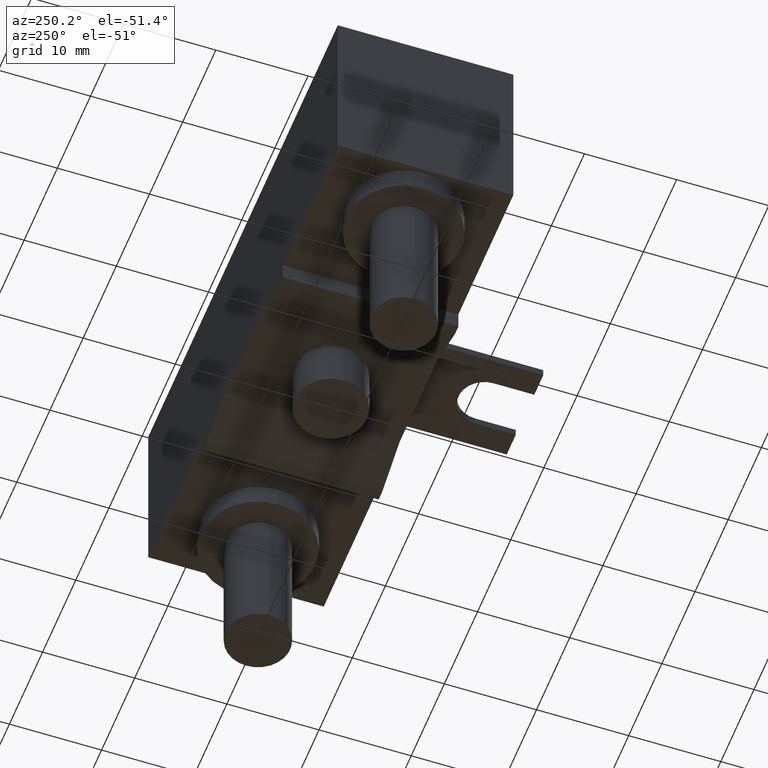
[diagram: clean part render]
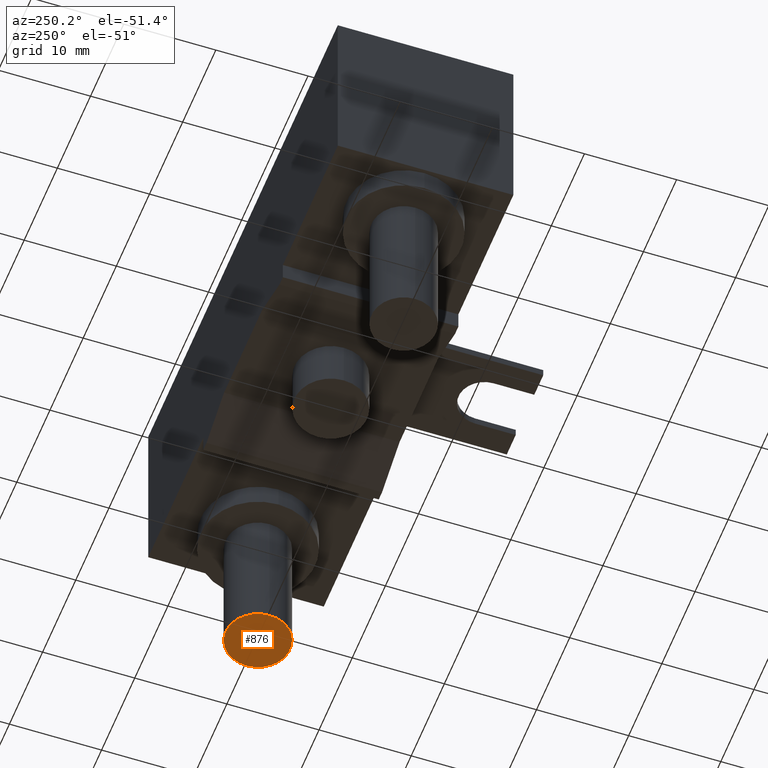
[diagram: same view with one face highlighted and labeled with its STEP entity id]
A machine part, auxiliary view. The second image highlights one B-rep face of the part: STEP entity #876.
In plain terms, the highlighted planar face has unit normal (0, 0, -1).
Its self-contained STEP definition (entity closure, byte-faithful):
#255=CARTESIAN_POINT('',(2.197E1,9.525E0,-2.723E1));
#256=DIRECTION('',(0.E0,0.E0,-1.E0));
#257=DIRECTION('',(1.E0,0.E0,0.E0));
#258=AXIS2_PLACEMENT_3D('',#255,#256,#257);
#260=CARTESIAN_POINT('',(2.197E1,9.525E0,-2.723E1));
#261=DIRECTION('',(0.E0,0.E0,-1.E0));
#262=DIRECTION('',(-1.E0,0.E0,0.E0));
#263=AXIS2_PLACEMENT_3D('',#260,#261,#262);
#447=CARTESIAN_POINT('',(2.547E1,9.525E0,-2.723E1));
#448=CARTESIAN_POINT('',(1.847E1,9.525E0,-2.723E1));
#449=VERTEX_POINT('',#447);
#450=VERTEX_POINT('',#448);
#867=CARTESIAN_POINT('',(0.E0,0.E0,-2.723E1));
#868=DIRECTION('',(0.E0,0.E0,-1.E0));
#869=DIRECTION('',(1.E0,0.E0,0.E0));
#870=AXIS2_PLACEMENT_3D('',#867,#868,#869);
#871=PLANE('',#870);
#872=ORIENTED_EDGE('',*,*,#847,.F.);
#873=ORIENTED_EDGE('',*,*,#861,.F.);
#874=EDGE_LOOP('',(#872,#873));
#875=FACE_OUTER_BOUND('',#874,.F.);
#259=CIRCLE('',#258,3.5E0);
#264=CIRCLE('',#263,3.5E0);
#847=EDGE_CURVE('',#449,#450,#259,.T.);
#861=EDGE_CURVE('',#450,#449,#264,.T.);
#876=ADVANCED_FACE('',(#875),#871,.T.);